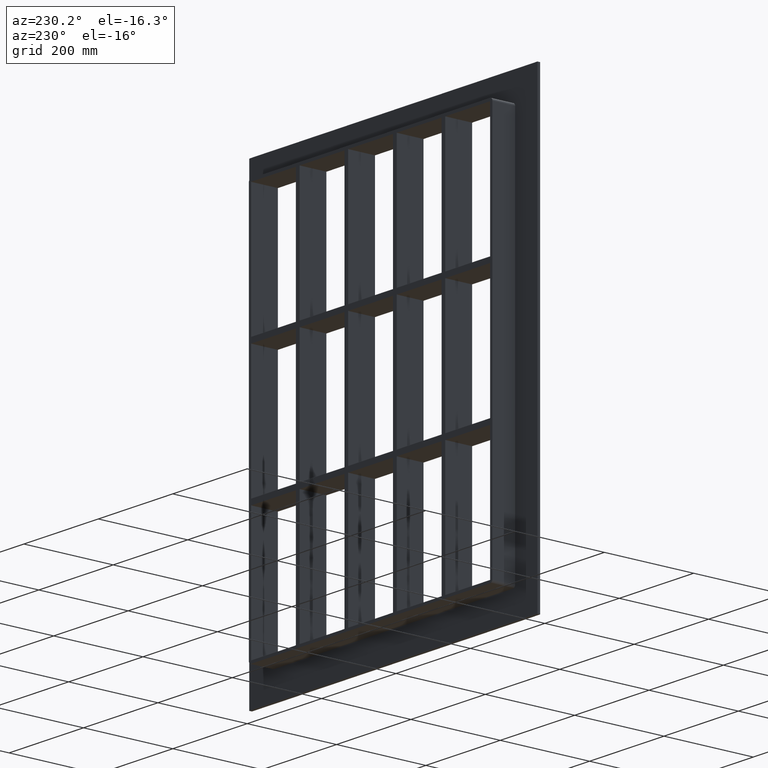
[diagram: clean part render]
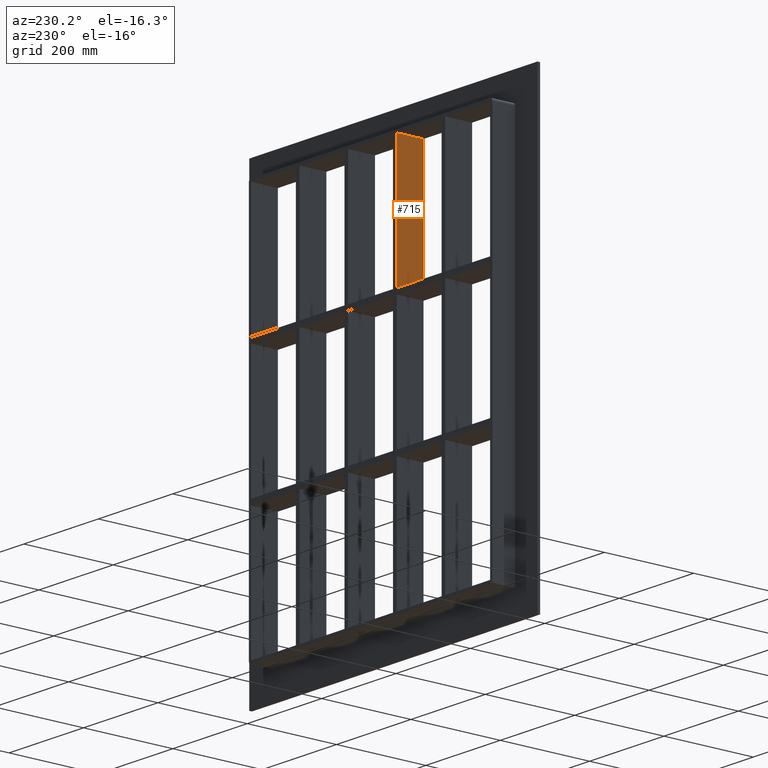
[diagram: same view with one face highlighted and labeled with its STEP entity id]
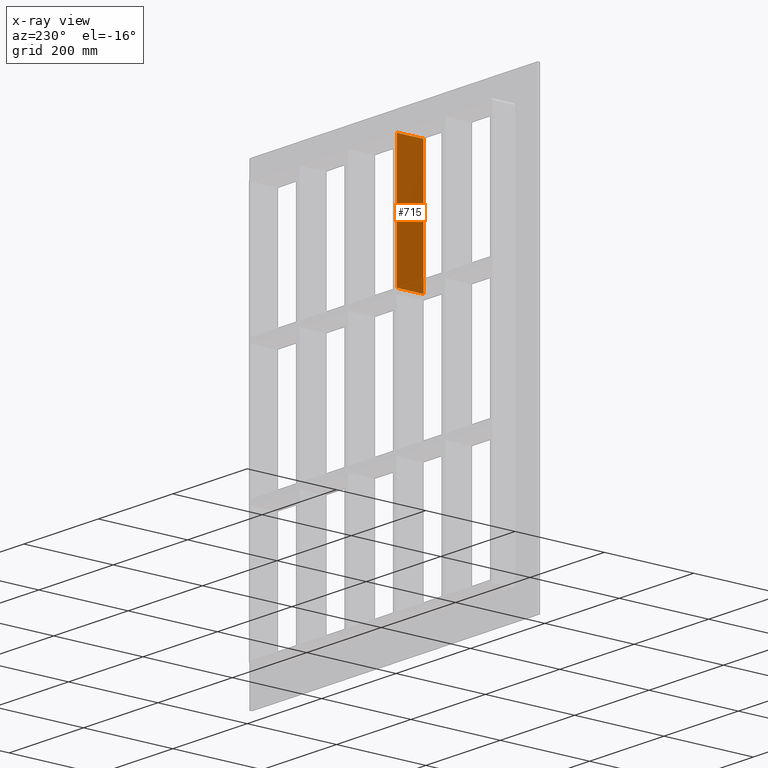
[diagram: x-ray of the same camera — body ghosted, the highlighted face saturated]
A machine part, auxiliary view. The second image highlights one B-rep face of the part: STEP entity #715.
The next image is the same camera in x-ray: the body ghosted, the highlighted face saturated — about 0% of this face is hidden behind the body in this view.
In plain terms, the highlighted planar face has unit normal (-1, 0, 0).
Its self-contained STEP definition (entity closure, byte-faithful):
#353=CARTESIAN_POINT('',(-70.250000000001265,57.0,150.99999999999994));
#354=VERTEX_POINT('',#353);
#355=CARTESIAN_POINT('',(-70.250000000001265,-3.0,150.99999999999994));
#356=VERTEX_POINT('',#355);
#357=CARTESIAN_POINT('',(-70.250000000001279,57.0,150.99999999999994));
#358=DIRECTION('',(0.0,-1.0,0.0));
#359=VECTOR('',#358,60.0);
#360=LINE('',#357,#359);
#361=EDGE_CURVE('',#354,#356,#360,.T.);
#685=CARTESIAN_POINT('',(-70.250000000001222,-3.0,-429.00000000000006));
#686=DIRECTION('',(-1.0,0.0,0.0));
#687=DIRECTION('',(0.0,0.0,1.0));
#688=AXIS2_PLACEMENT_3D('',#685,#686,#687);
#689=PLANE('',#688);
#690=ORIENTED_EDGE('',*,*,#361,.T.);
#691=CARTESIAN_POINT('',(-70.250000000001307,-3.0,429.00000000000006));
#692=VERTEX_POINT('',#691);
#693=CARTESIAN_POINT('',(-70.250000000001265,-3.0,150.99999999999994));
#694=DIRECTION('',(0.0,0.0,1.0));
#695=VECTOR('',#694,278.00000000000011);
#696=LINE('',#693,#695);
#697=EDGE_CURVE('',#356,#692,#696,.T.);
#698=ORIENTED_EDGE('',*,*,#697,.T.);
#699=CARTESIAN_POINT('',(-70.250000000001307,57.0,429.00000000000006));
#700=VERTEX_POINT('',#699);
#701=CARTESIAN_POINT('',(-70.250000000001279,57.000000000000007,429.00000000000006));
#702=DIRECTION('',(0.0,-1.0,0.0));
#703=VECTOR('',#702,60.000000000000007);
#704=LINE('',#701,#703);
#705=EDGE_CURVE('',#700,#692,#704,.T.);
#706=ORIENTED_EDGE('',*,*,#705,.F.);
#707=CARTESIAN_POINT('',(-70.250000000001265,57.0,150.99999999999994));
#708=DIRECTION('',(0.0,0.0,1.0));
#709=VECTOR('',#708,278.00000000000011);
#710=LINE('',#707,#709);
#711=EDGE_CURVE('',#354,#700,#710,.T.);
#712=ORIENTED_EDGE('',*,*,#711,.F.);
#713=EDGE_LOOP('',(#690,#698,#706,#712));
#714=FACE_OUTER_BOUND('',#713,.T.);
#715=ADVANCED_FACE('',(#714),#689,.T.);